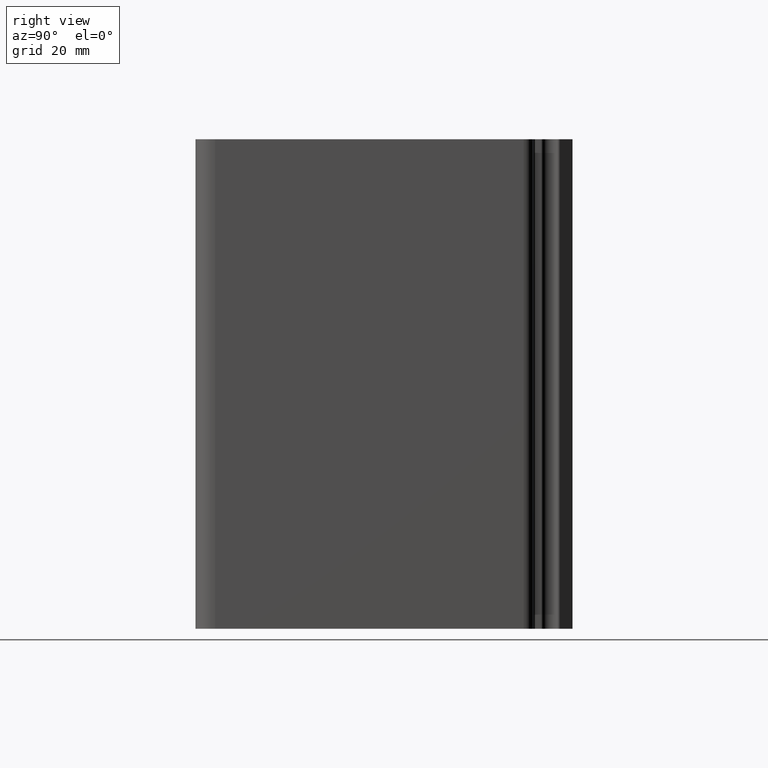
[diagram: clean part render]
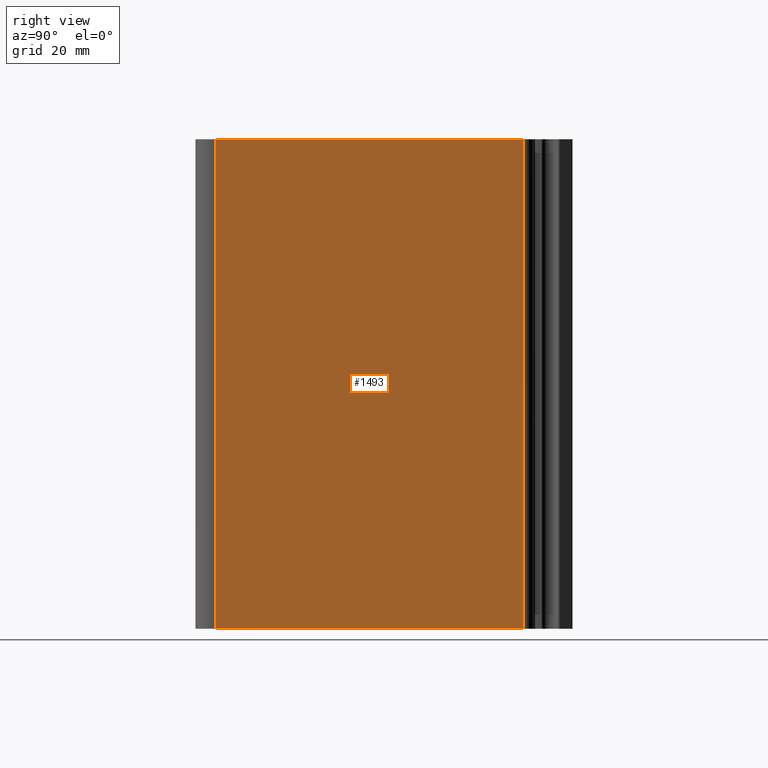
[diagram: same view with one face highlighted and labeled with its STEP entity id]
A machine part, right view. The second image highlights one B-rep face of the part: STEP entity #1493.
In plain terms, the highlighted planar face has unit normal (1, -0, 0).
Its self-contained STEP definition (entity closure, byte-faithful):
#48=PLANE('',#1633);
#119=FACE_OUTER_BOUND('',#195,.T.);
#195=EDGE_LOOP('',(#1205,#1206,#1207,#1208));
#337=LINE('',#2490,#487);
#338=LINE('',#2493,#488);
#339=LINE('',#2495,#489);
#340=LINE('',#2496,#490);
#487=VECTOR('',#2039,100.);
#488=VECTOR('',#2042,62.9999999917754);
#489=VECTOR('',#2043,62.9999999917754);
#490=VECTOR('',#2044,100.);
#707=VERTEX_POINT('',#2486);
#708=VERTEX_POINT('',#2488);
#709=VERTEX_POINT('',#2492);
#710=VERTEX_POINT('',#2494);
#919=EDGE_CURVE('',#707,#708,#337,.T.);
#920=EDGE_CURVE('',#709,#707,#338,.T.);
#921=EDGE_CURVE('',#710,#708,#339,.T.);
#922=EDGE_CURVE('',#709,#710,#340,.T.);
#1205=ORIENTED_EDGE('',*,*,#920,.T.);
#1206=ORIENTED_EDGE('',*,*,#919,.T.);
#1207=ORIENTED_EDGE('',*,*,#921,.F.);
#1208=ORIENTED_EDGE('',*,*,#922,.F.);
#1493=ADVANCED_FACE('',(#119),#48,.T.);
#1633=AXIS2_PLACEMENT_3D('',#2491,#2040,#2041);
#2039=DIRECTION('',(0.,0.,1.));
#2040=DIRECTION('center_axis',(1.,-2.65415907981355E-11,0.));
#2041=DIRECTION('ref_axis',(2.65416133515828E-11,1.,0.));
#2042=DIRECTION('',(2.65415907981355E-11,1.,0.));
#2043=DIRECTION('',(2.65415907981355E-11,1.,0.));
#2044=DIRECTION('',(0.,0.,1.));
#2486=CARTESIAN_POINT('',(39.9999999991639,66.9999999917661,0.));
#2488=CARTESIAN_POINT('',(39.9999999991639,66.9999999917661,100.));
#2490=CARTESIAN_POINT('',(39.9999999991639,66.9999999917661,0.));
#2491=CARTESIAN_POINT('Origin',(39.9999999974918,3.99999999999069,0.));
#2492=CARTESIAN_POINT('',(39.9999999974918,3.99999999999068,0.));
#2493=CARTESIAN_POINT('',(39.9999999974918,3.99999999999069,0.));
#2494=CARTESIAN_POINT('',(39.9999999974918,3.99999999999069,100.));
#2495=CARTESIAN_POINT('',(39.9999999974918,3.99999999999069,100.));
#2496=CARTESIAN_POINT('',(39.9999999974918,3.99999999999068,0.));